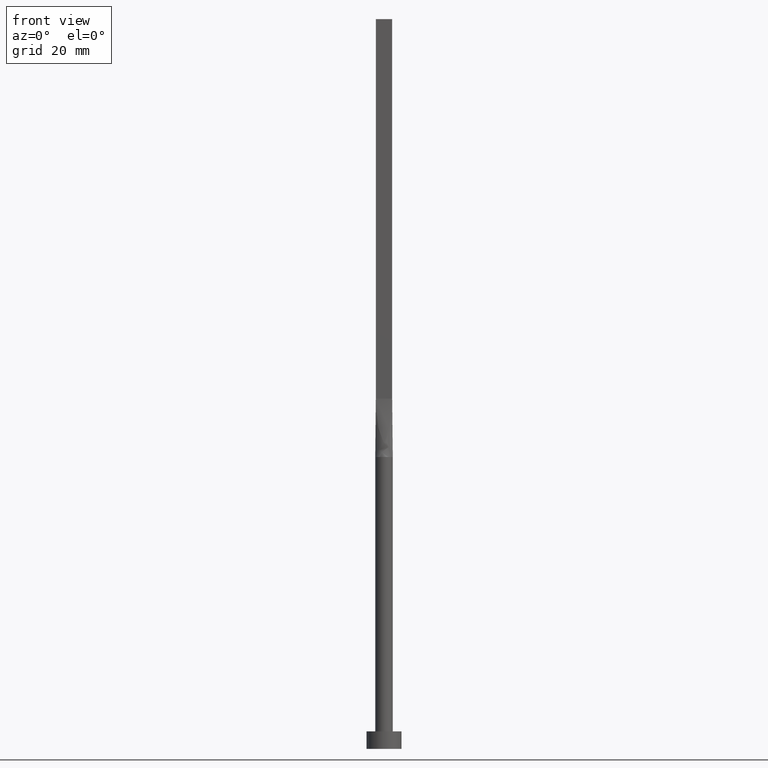
[diagram: clean part render]
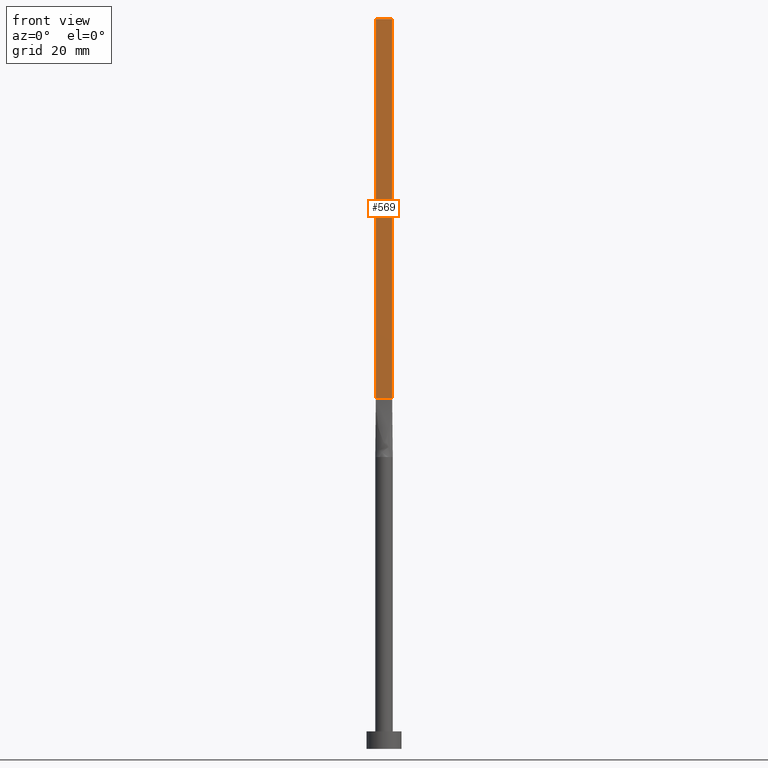
[diagram: same view with one face highlighted and labeled with its STEP entity id]
A machine part, front view. The second image highlights one B-rep face of the part: STEP entity #569.
In plain terms, the highlighted planar face has unit normal (0, 1, -0).
Its self-contained STEP definition (entity closure, byte-faithful):
#13 = LINE ( 'NONE', #494, #289 ) ;
#16 = CARTESIAN_POINT ( 'NONE',  ( -1.399999999999999911, -0.2999999999999996003, 60.00000000000000711 ) ) ;
#20 = ORIENTED_EDGE ( 'NONE', *, *, #228, .F. ) ;
#29 = LINE ( 'NONE', #211, #119 ) ;
#39 = VECTOR ( 'NONE', #383, 1000.000000000000000 ) ;
#80 = AXIS2_PLACEMENT_3D ( 'NONE', #206, #434, #113 ) ;
#113 = DIRECTION ( 'NONE',  ( -1.000000000000000000, 5.808225924029488744E-17, 0.000000000000000000 ) ) ;
#119 = VECTOR ( 'NONE', #164, 1000.000000000000000 ) ;
#125 = PLANE ( 'NONE',  #80 ) ;
#149 = EDGE_CURVE ( 'NONE', #248, #433, #13, .T. ) ;
#161 = CARTESIAN_POINT ( 'NONE',  ( -1.399999999999999911, -0.2999999999999996003, 125.0000000000000000 ) ) ;
#164 = DIRECTION ( 'NONE',  ( -0.000000000000000000, -0.000000000000000000, -1.000000000000000000 ) ) ;
#183 = EDGE_CURVE ( 'NONE', #248, #545, #389, .T. ) ;
#196 = ORIENTED_EDGE ( 'NONE', *, *, #183, .T. ) ;
#201 = EDGE_LOOP ( 'NONE', ( #504, #20, #205, #196 ) ) ;
#205 = ORIENTED_EDGE ( 'NONE', *, *, #149, .F. ) ;
#206 = CARTESIAN_POINT ( 'NONE',  ( -1.399999999999999911, -0.2999999999999996003, 125.0000000000000000 ) ) ;
#211 = CARTESIAN_POINT ( 'NONE',  ( 1.399999999999999911, -0.2999999999999997669, 125.0000000000000000 ) ) ;
#212 = DIRECTION ( 'NONE',  ( -0.000000000000000000, -0.000000000000000000, -1.000000000000000000 ) ) ;
#214 = CARTESIAN_POINT ( 'NONE',  ( 1.399999999999999911, -0.2999999999999997669, 125.0000000000000000 ) ) ;
#228 = EDGE_CURVE ( 'NONE', #433, #407, #29, .T. ) ;
#230 = DIRECTION ( 'NONE',  ( 1.000000000000000000, -5.808225924029488744E-17, 0.000000000000000000 ) ) ;
#242 = CARTESIAN_POINT ( 'NONE',  ( -1.399999999999999911, -0.2999999999999996003, 125.0000000000000000 ) ) ;
#248 = VERTEX_POINT ( 'NONE', #242 ) ;
#264 = EDGE_CURVE ( 'NONE', #545, #407, #327, .T. ) ;
#289 = VECTOR ( 'NONE', #230, 1000.000000000000000 ) ;
#327 = LINE ( 'NONE', #16, #39 ) ;
#383 = DIRECTION ( 'NONE',  ( 1.000000000000000000, -5.808225924029488744E-17, 0.000000000000000000 ) ) ;
#385 = CARTESIAN_POINT ( 'NONE',  ( 1.399999999999999911, -0.2999999999999997669, 60.00000000000000711 ) ) ;
#389 = LINE ( 'NONE', #161, #464 ) ;
#393 = FACE_OUTER_BOUND ( 'NONE', #201, .T. ) ;
#407 = VERTEX_POINT ( 'NONE', #385 ) ;
#433 = VERTEX_POINT ( 'NONE', #214 ) ;
#434 = DIRECTION ( 'NONE',  ( 5.808225924029488744E-17, 1.000000000000000000, -0.000000000000000000 ) ) ;
#464 = VECTOR ( 'NONE', #212, 1000.000000000000000 ) ;
#479 = CARTESIAN_POINT ( 'NONE',  ( -1.399999999999999911, -0.2999999999999996003, 60.00000000000000711 ) ) ;
#494 = CARTESIAN_POINT ( 'NONE',  ( -1.399999999999999911, -0.2999999999999996003, 125.0000000000000000 ) ) ;
#504 = ORIENTED_EDGE ( 'NONE', *, *, #264, .T. ) ;
#545 = VERTEX_POINT ( 'NONE', #479 ) ;
#569 = ADVANCED_FACE ( 'NONE', ( #393 ), #125, .F. ) ;